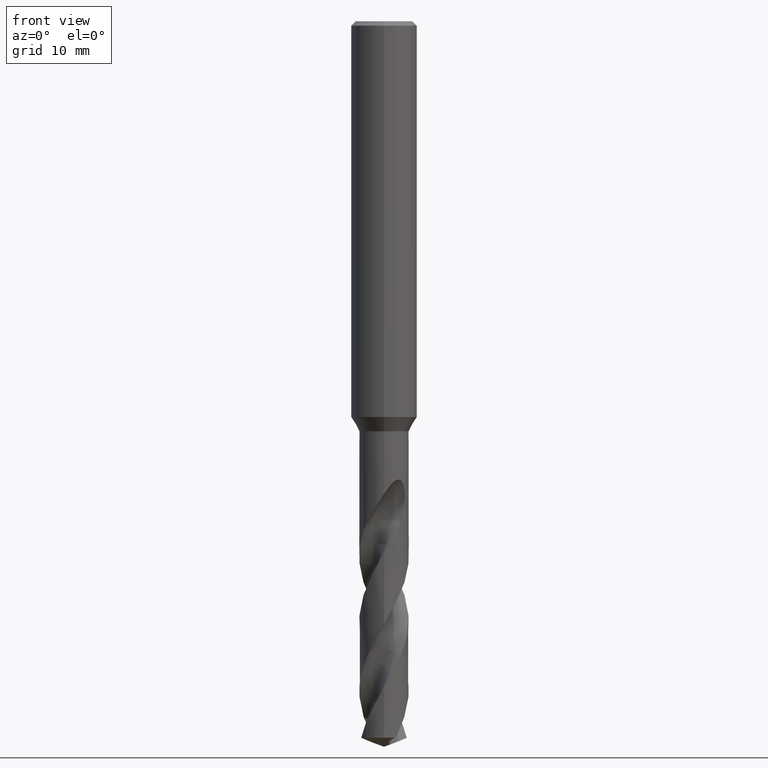
[diagram: clean part render]
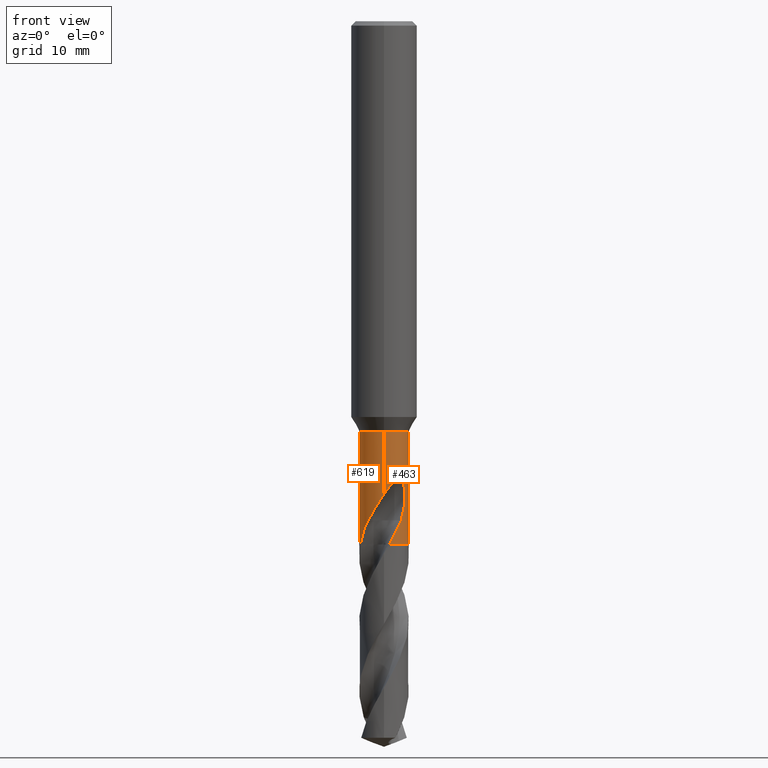
[diagram: same view with one multi-face feature highlighted, each face labeled with its STEP entity id]
A machine part, front view. The highlighted faces form ONE feature: a constant-radius fillet chain: 2 tangent blend faces with common blend radius 2.25 mm. The faces share edges in the B-rep.
Their STEP definitions:
[1] entity #463 (Cylinder):
#309=EDGE_CURVE('',#669,#689,#834,.T.);
#357=EDGE_CURVE('',#657,#689,#889,.T.);
#361=VERTEX_POINT('',#893);
#365=EDGE_CURVE('',#637,#765,#897,.T.);
#431=EDGE_CURVE('',#649,#765,#967,.T.);
#437=EDGE_CURVE('',#637,#669,#974,.T.);
#463=ADVANCED_FACE('',(#1002),#1003,.T.);
#477=EDGE_CURVE('',#505,#649,#1019,.T.);
#505=VERTEX_POINT('',#1050);
#511=EDGE_CURVE('',#361,#505,#1056,.T.);
#527=EDGE_CURVE('',#657,#715,#1073,.T.);
#637=VERTEX_POINT('',#1197);
#649=VERTEX_POINT('',#1211);
#657=VERTEX_POINT('',#1219);
#669=VERTEX_POINT('',#1232);
#689=VERTEX_POINT('',#1253);
#701=EDGE_CURVE('',#361,#715,#1266,.T.);
#715=VERTEX_POINT('',#1281);
#765=VERTEX_POINT('',#1333);
#834=B_SPLINE_CURVE_WITH_KNOTS('',3,(#1509,#1510,#1511,#1512,#1513,#1514,#1515,#1516,#1517,#1518,#1519,#1520,#1521,#1522,#1523,#1524,#1525,#1526,#1527,#1528,#1529,#1530,#1531,#1532,#1533,#1534,#1535,#1536),.UNSPECIFIED.,.F.,.F.,(4,2,2,2,2,2,2,2,2,2,2,2,2,4),(0.0,1.10237676829181,1.70429934614401,2.24948987269169,2.8828703444505,3.64370487400014,4.30313326674343,4.60196331204855,4.8203716542526,5.0270498267203,5.28923341162813,5.67281863326754,6.21813012500002,6.83823133073381),.UNSPECIFIED.);
#889=LINE('',#2030,#2031);
#893=CARTESIAN_POINT('',(6.65827493780049E-013,-2.25,-43.0152946603124));
#897=CIRCLE('',#2054,2.25);
#967=B_SPLINE_CURVE_WITH_KNOTS('',3,(#2637,#2638,#2639,#2640,#2641,#2642,#2643,#2644),.UNSPECIFIED.,.F.,.F.,(4,2,2,4),(0.0,0.55755403876802,1.06514571910261,2.29127628218224),.UNSPECIFIED.);
#974=B_SPLINE_CURVE_WITH_KNOTS('',3,(#2652,#2653,#2654,#2655,#2656,#2657,#2658,#2659),.UNSPECIFIED.,.F.,.F.,(4,2,2,4),(0.0,1.28599739553254,2.09608091802711,4.94454390842198),.UNSPECIFIED.);
#1002=FACE_OUTER_BOUND('',#2714,.T.);
#1003=CYLINDRICAL_SURFACE('',#2715,2.25);
#1019=B_SPLINE_CURVE_WITH_KNOTS('',3,(#2742,#2743,#2744,#2745),.UNSPECIFIED.,.F.,.F.,(4,4),(0.0,1.29311977624072),.UNSPECIFIED.);
#1050=CARTESIAN_POINT('',(1.8306948674076,-1.30807350804436,-44.1749444868824));
#1056=B_SPLINE_CURVE_WITH_KNOTS('',3,(#3478,#3479,#3480,#3481,#3482,#3483,#3484,#3485,#3486,#3487,#3488,#3489,#3490,#3491,#3492,#3493,#3494,#3495,#3496,#3497,#3498,#3499,#3500,#3501,#3502,#3503,#3504,#3505),.UNSPECIFIED.,.F.,.F.,(4,2,2,2,2,2,2,2,2,2,2,2,2,4),(0.0,1.10237676829181,1.70429934614394,2.2494898726916,2.8828703444505,3.64370487400023,4.30313326674349,4.60196331204858,4.8203716542527,5.02704982672052,5.28923341162848,5.67281863326762,6.2181301249992,6.83823133073143),.UNSPECIFIED.);
#1073=CIRCLE('',#3568,2.25);
#1197=CARTESIAN_POINT('',(2.15571934107587,0.644495246306297,-47.6));
#1211=CARTESIAN_POINT('',(1.56392402088537,-1.61760367732573,-45.407));
#1219=CARTESIAN_POINT('',(0.0,2.25,-37.2990381056767));
#1232=CARTESIAN_POINT('',(1.43373680585452,1.73404116777488,-45.407));
#1253=CARTESIAN_POINT('',(-6.64717270755424E-013,2.25,-43.0152946603124));
#1266=LINE('',#5847,#5848);
#1281=CARTESIAN_POINT('',(2.75536429610035E-016,-2.25,-37.2990381056767));
#1333=CARTESIAN_POINT('',(0.460660797289497,-2.20233776470382,-47.6));
#1509=CARTESIAN_POINT('',(1.43373680585452,1.73404116777488,-45.407));
#1510=CARTESIAN_POINT('',(1.28531840748315,1.85675620151544,-45.094047832029));
#1511=CARTESIAN_POINT('',(1.11467076594076,1.96584135909783,-44.8022756175691));
#1512=CARTESIAN_POINT('',(0.81711210209405,2.09954804117511,-44.3148500324075));
#1513=CARTESIAN_POINT('',(0.710036634719777,2.13801035581372,-44.1433574929602));
#1514=CARTESIAN_POINT('',(0.502752047922393,2.19549362913406,-43.8113922967703));
#1515=CARTESIAN_POINT('',(0.403468463026476,2.21580233585447,-43.65246700864));
#1516=CARTESIAN_POINT('',(0.188561307317842,2.2451128349668,-43.3099407237453));
#1517=CARTESIAN_POINT('',(0.0711426284877066,2.25199414449595,-43.1236586076092));
#1518=CARTESIAN_POINT('',(-0.189614129355091,2.24650927091748,-42.7251397399363));
#1519=CARTESIAN_POINT('',(-0.344216508040488,2.22954453559628,-42.4983781589815));
#1520=CARTESIAN_POINT('',(-0.642347221171536,2.16103276674423,-42.1244639290739));
#1521=CARTESIAN_POINT('',(-0.807291055321115,2.10883543012946,-41.9420083704354));
#1522=CARTESIAN_POINT('',(-1.05693186905048,1.98818290346383,-41.7711572005222));
#1523=CARTESIAN_POINT('',(-1.13956457960838,1.9426338280077,-41.7289330620008));
#1524=CARTESIAN_POINT('',(-1.28435609304837,1.84884715320582,-41.6964973436554));
#1525=CARTESIAN_POINT('',(-1.34374322626079,1.80613599454048,-41.6958916851621));
#1526=CARTESIAN_POINT('',(-1.45435497133747,1.71815991904833,-41.724279673852));
#1527=CARTESIAN_POINT('',(-1.50273103034455,1.67566922866192,-41.75089594029));
#1528=CARTESIAN_POINT('',(-1.60117577401835,1.58255419568909,-41.8341751821428));
#1529=CARTESIAN_POINT('',(-1.64672076822659,1.53429964522005,-41.8956619242978));
#1530=CARTESIAN_POINT('',(-1.74001164378541,1.42893229649089,-42.0640317240675));
#1531=CARTESIAN_POINT('',(-1.78460282261076,1.37155223423002,-42.1889123627397));
#1532=CARTESIAN_POINT('',(-1.86845488675278,1.25633378271581,-42.5383144933762));
#1533=CARTESIAN_POINT('',(-1.89876934940317,1.20725625416177,-42.7871540010812));
#1534=CARTESIAN_POINT('',(-1.91815217862639,1.17625283009311,-43.382082225774));
#1535=CARTESIAN_POINT('',(-1.90441817677815,1.20489514441039,-43.7556273268125));
#1536=CARTESIAN_POINT('',(-1.8306948674076,1.30807350804437,-44.1749444868824));
#2030=CARTESIAN_POINT('',(-2.75536429610035E-016,2.25,-42.4495190528383));
#2031=VECTOR('',#7011,1.0);
#2054=AXIS2_PLACEMENT_3D('',#7012,#7013,#7014);
#2637=CARTESIAN_POINT('',(1.56392402088537,-1.61760367732573,-45.407));
#2638=CARTESIAN_POINT('',(1.50039415086636,-1.67902532909319,-45.5704994165577));
#2639=CARTESIAN_POINT('',(1.43137149254343,-1.73879532790129,-45.73453330758));
#2640=CARTESIAN_POINT('',(1.28074922761378,-1.85209305228338,-46.0553195717561));
#2641=CARTESIAN_POINT('',(1.20413959618379,-1.90317989877412,-46.2090568045551));
#2642=CARTESIAN_POINT('',(0.914656382958197,-2.0692038211752,-46.7822674646906));
#2643=CARTESIAN_POINT('',(0.692365972268975,-2.15387222397126,-47.1918302557839));
#2644=CARTESIAN_POINT('',(0.460660797289477,-2.20233776470384,-47.6));
#2652=CARTESIAN_POINT('',(2.15571934107587,0.644495246306297,-47.6));
#2653=CARTESIAN_POINT('',(2.09402165108458,0.850862794207038,-47.2293786338645));
#2654=CARTESIAN_POINT('',(2.00402082069842,1.04428822684783,-46.8759147557581));
#2655=CARTESIAN_POINT('',(1.81823137601946,1.33193418632518,-46.2648250588165));
#2656=CARTESIAN_POINT('',(1.75809873406274,1.40455722380299,-46.0857670836258));
#2657=CARTESIAN_POINT('',(1.6589099690586,1.52487953277457,-45.798540947007));
#2658=CARTESIAN_POINT('',(1.56140059388479,1.62848642370345,-45.5982257988504));
#2659=CARTESIAN_POINT('',(1.43373680585452,1.73404116777488,-45.407));
#2714=EDGE_LOOP('',(#7093,#7094,#7095,#7096,#7097,#7098,#7099,#7100,#7101));
#2715=AXIS2_PLACEMENT_3D('',#7102,#7103,#7104);
#2742=CARTESIAN_POINT('',(1.83069486746022,-1.30807350797072,-44.1749444869114));
#2743=CARTESIAN_POINT('',(1.75815672198912,-1.40959319306474,-44.5875307061317));
#2744=CARTESIAN_POINT('',(1.670728868177,-1.51434311445256,-45.0025722088964));
#2745=CARTESIAN_POINT('',(1.56392402088537,-1.61760367732573,-45.407));
#3478=CARTESIAN_POINT('',(-1.43373680585452,-1.73404116777488,-45.407));
#3479=CARTESIAN_POINT('',(-1.28531840748316,-1.85675620151544,-45.094047832029));
#3480=CARTESIAN_POINT('',(-1.11467076594076,-1.96584135909783,-44.8022756175691));
#3481=CARTESIAN_POINT('',(-0.817112102094059,-2.09954804117511,-44.3148500324075));
#3482=CARTESIAN_POINT('',(-0.710036634719798,-2.13801035581372,-44.1433574929603));
#3483=CARTESIAN_POINT('',(-0.50275204792237,-2.19549362913407,-43.8113922967703));
#3484=CARTESIAN_POINT('',(-0.403468463026427,-2.21580233585448,-43.6524670086399));
#3485=CARTESIAN_POINT('',(-0.188561307317877,-2.24511283496679,-43.3099407237454));
#3486=CARTESIAN_POINT('',(-0.0711426284877195,-2.25199414449595,-43.1236586076092));
#3487=CARTESIAN_POINT('',(0.189614129355106,-2.24650927091748,-42.7251397399363));
#3488=CARTESIAN_POINT('',(0.344216508040494,-2.22954453559628,-42.4983781589815));
#3489=CARTESIAN_POINT('',(0.642347221171512,-2.16103276674424,-42.1244639290739));
#3490=CARTESIAN_POINT('',(0.807291055321111,-2.10883543012946,-41.9420083704354));
#3491=CARTESIAN_POINT('',(1.05693186905048,-1.98818290346383,-41.7711572005222));
#3492=CARTESIAN_POINT('',(1.13956457960838,-1.9426338280077,-41.7289330620008));
#3493=CARTESIAN_POINT('',(1.2843560930484,-1.8488471532058,-41.6964973436554));
#3494=CARTESIAN_POINT('',(1.34374322626081,-1.80613599454048,-41.6958916851621));
#3495=CARTESIAN_POINT('',(1.45435497133748,-1.71815991904833,-41.724279673852));
#3496=CARTESIAN_POINT('',(1.50273103034455,-1.67566922866191,-41.75089594029));
#3497=CARTESIAN_POINT('',(1.60117577401835,-1.58255419568909,-41.8341751821428));
#3498=CARTESIAN_POINT('',(1.64672076822658,-1.53429964522005,-41.8956619242978));
#3499=CARTESIAN_POINT('',(1.74001164378536,-1.42893229649095,-42.0640317240674));
#3500=CARTESIAN_POINT('',(1.78460282261072,-1.37155223423007,-42.1889123627395));
#3501=CARTESIAN_POINT('',(1.86845488675279,-1.2563337827158,-42.5383144933762));
#3502=CARTESIAN_POINT('',(1.89876934940317,-1.20725625416177,-42.7871540010812));
#3503=CARTESIAN_POINT('',(1.91815217862638,-1.17625283009312,-43.3820822257736));
#3504=CARTESIAN_POINT('',(1.90441817677821,-1.2048951444103,-43.7556273268122));
#3505=CARTESIAN_POINT('',(1.8306948674076,-1.30807350804436,-44.1749444868824));
#3568=AXIS2_PLACEMENT_3D('',#7178,#7179,#7180);
#5847=CARTESIAN_POINT('',(2.75536429610035E-016,-2.25,-42.4495190528383));
#5848=VECTOR('',#7389,1.0);
#7011=DIRECTION('',(0.0,0.0,-1.0));
#7012=CARTESIAN_POINT('',(0.0,0.0,-47.6));
#7013=DIRECTION('',(0.0,0.0,-1.0));
#7014=DIRECTION('',(0.0,1.0,0.0));
#7093=ORIENTED_EDGE('',*,*,#357,.F.);
#7094=ORIENTED_EDGE('',*,*,#527,.T.);
#7095=ORIENTED_EDGE('',*,*,#701,.F.);
#7096=ORIENTED_EDGE('',*,*,#511,.T.);
#7097=ORIENTED_EDGE('',*,*,#477,.T.);
#7098=ORIENTED_EDGE('',*,*,#431,.T.);
#7099=ORIENTED_EDGE('',*,*,#365,.F.);
#7100=ORIENTED_EDGE('',*,*,#437,.T.);
#7101=ORIENTED_EDGE('',*,*,#309,.T.);
#7102=CARTESIAN_POINT('',(0.0,0.0,-42.4495190528383));
#7103=DIRECTION('',(-0.0,-0.0,1.0));
#7104=DIRECTION('',(0.0,1.0,0.0));
#7178=CARTESIAN_POINT('',(0.0,0.0,-37.2990381056767));
#7179=DIRECTION('',(0.0,0.0,-1.0));
#7180=DIRECTION('',(0.0,1.0,0.0));
#7389=DIRECTION('',(-0.0,-0.0,1.0));
[2] entity #619 (Cylinder):
#357=EDGE_CURVE('',#657,#689,#889,.T.);
#361=VERTEX_POINT('',#893);
#379=EDGE_CURVE('',#635,#717,#911,.T.);
#407=EDGE_CURVE('',#689,#495,#940,.T.);
#441=EDGE_CURVE('',#495,#613,#978,.T.);
#467=EDGE_CURVE('',#635,#569,#1007,.T.);
#489=EDGE_CURVE('',#613,#569,#1033,.T.);
#495=VERTEX_POINT('',#1039);
#569=VERTEX_POINT('',#1119);
#585=EDGE_CURVE('',#715,#657,#1138,.T.);
#613=VERTEX_POINT('',#1169);
#619=ADVANCED_FACE('',(#1175),#1176,.T.);
#635=VERTEX_POINT('',#1195);
#657=VERTEX_POINT('',#1219);
#665=EDGE_CURVE('',#717,#361,#1228,.T.);
#689=VERTEX_POINT('',#1253);
#701=EDGE_CURVE('',#361,#715,#1266,.T.);
#715=VERTEX_POINT('',#1281);
#717=VERTEX_POINT('',#1283);
#889=LINE('',#2030,#2031);
#893=CARTESIAN_POINT('',(6.65827493780049E-013,-2.25,-43.0152946603124));
#911=B_SPLINE_CURVE_WITH_KNOTS('',3,(#2086,#2087,#2088,#2089,#2090,#2091,#2092,#2093),.UNSPECIFIED.,.F.,.F.,(4,2,2,4),(0.0,1.28599739653616,2.09608092041925,4.94454398733748),.UNSPECIFIED.);
#940=B_SPLINE_CURVE_WITH_KNOTS('',3,(#2135,#2136,#2137,#2138,#2139,#2140,#2141,#2142,#2143,#2144,#2145,#2146,#2147,#2148,#2149,#2150,#2151,#2152,#2153,#2154,#2155,#2156,#2157,#2158,#2159,#2160,#2161,#2162),.UNSPECIFIED.,.F.,.F.,(4,2,2,2,2,2,2,2,2,2,2,2,2,4),(0.0,1.10237676829181,1.70429934614401,2.24948987269169,2.8828703444505,3.64370487400014,4.30313326674343,4.60196331204855,4.8203716542526,5.0270498267203,5.28923341162813,5.67281863326754,6.21813012500002,6.83823133073381),.UNSPECIFIED.);
#978=B_SPLINE_CURVE_WITH_KNOTS('',3,(#2664,#2665,#2666,#2667),.UNSPECIFIED.,.F.,.F.,(4,4),(0.0,1.29311977624086),.UNSPECIFIED.);
#1007=CIRCLE('',#2720,2.25);
#1033=B_SPLINE_CURVE_WITH_KNOTS('',3,(#3344,#3345,#3346,#3347,#3348,#3349,#3350,#3351),.UNSPECIFIED.,.F.,.F.,(4,2,2,4),(0.0,0.557554038716926,1.06514571864225,2.29127628219695),.UNSPECIFIED.);
#1039=CARTESIAN_POINT('',(-1.8306948674076,1.30807350804436,-44.1749444868824));
#1119=CARTESIAN_POINT('',(-0.46066079728949,2.20233776470382,-47.6));
#1138=CIRCLE('',#4773,2.25);
#1169=CARTESIAN_POINT('',(-1.56392402088537,1.61760367732573,-45.407));
#1175=FACE_OUTER_BOUND('',#5052,.T.);
#1176=CYLINDRICAL_SURFACE('',#5053,2.25);
#1195=CARTESIAN_POINT('',(-2.15571934107587,-0.644495246306293,-47.6));
#1219=CARTESIAN_POINT('',(0.0,2.25,-37.2990381056767));
#1228=B_SPLINE_CURVE_WITH_KNOTS('',3,(#5678,#5679,#5680,#5681,#5682,#5683,#5684,#5685,#5686,#5687,#5688,#5689,#5690,#5691,#5692,#5693,#5694,#5695,#5696,#5697,#5698,#5699,#5700,#5701,#5702,#5703,#5704,#5705),.UNSPECIFIED.,.F.,.F.,(4,2,2,2,2,2,2,2,2,2,2,2,2,4),(0.0,1.10237676829181,1.70429934614394,2.2494898726916,2.8828703444505,3.64370487400023,4.30313326674349,4.60196331204858,4.8203716542527,5.02704982672052,5.28923341162848,5.67281863326762,6.2181301249992,6.83823133073143),.UNSPECIFIED.);
#1253=CARTESIAN_POINT('',(-6.64717270755424E-013,2.25,-43.0152946603124));
#1266=LINE('',#5847,#5848);
#1281=CARTESIAN_POINT('',(2.75536429610035E-016,-2.25,-37.2990381056767));
#1283=CARTESIAN_POINT('',(-1.43373680585452,-1.73404116777488,-45.407));
#2030=CARTESIAN_POINT('',(-2.75536429610035E-016,2.25,-42.4495190528383));
#2031=VECTOR('',#7011,1.0);
#2086=CARTESIAN_POINT('',(-2.15571934107587,-0.644495246306279,-47.6));
#2087=CARTESIAN_POINT('',(-2.09402165103644,-0.850862794368064,-47.2293786335753));
#2088=CARTESIAN_POINT('',(-2.00402082066697,-1.04428822689931,-46.8759147556516));
#2089=CARTESIAN_POINT('',(-1.81823137595767,-1.33193418641903,-46.2648250586152));
#2090=CARTESIAN_POINT('',(-1.75809873392896,-1.40455722395062,-46.0857670833168));
#2091=CARTESIAN_POINT('',(-1.65890996933118,-1.52487953249544,-45.7985409475202));
#2092=CARTESIAN_POINT('',(-1.56140059408622,-1.62848642353691,-45.5982257991521));
#2093=CARTESIAN_POINT('',(-1.43373680585452,-1.73404116777488,-45.407));
#2135=CARTESIAN_POINT('',(1.43373680585452,1.73404116777488,-45.407));
#2136=CARTESIAN_POINT('',(1.28531840748315,1.85675620151544,-45.094047832029));
#2137=CARTESIAN_POINT('',(1.11467076594076,1.96584135909783,-44.8022756175691));
#2138=CARTESIAN_POINT('',(0.81711210209405,2.09954804117511,-44.3148500324075));
#2139=CARTESIAN_POINT('',(0.710036634719777,2.13801035581372,-44.1433574929602));
#2140=CARTESIAN_POINT('',(0.502752047922393,2.19549362913406,-43.8113922967703));
#2141=CARTESIAN_POINT('',(0.403468463026476,2.21580233585447,-43.65246700864));
#2142=CARTESIAN_POINT('',(0.188561307317842,2.2451128349668,-43.3099407237453));
#2143=CARTESIAN_POINT('',(0.0711426284877066,2.25199414449595,-43.1236586076092));
#2144=CARTESIAN_POINT('',(-0.189614129355091,2.24650927091748,-42.7251397399363));
#2145=CARTESIAN_POINT('',(-0.344216508040488,2.22954453559628,-42.4983781589815));
#2146=CARTESIAN_POINT('',(-0.642347221171536,2.16103276674423,-42.1244639290739));
#2147=CARTESIAN_POINT('',(-0.807291055321115,2.10883543012946,-41.9420083704354));
#2148=CARTESIAN_POINT('',(-1.05693186905048,1.98818290346383,-41.7711572005222));
#2149=CARTESIAN_POINT('',(-1.13956457960838,1.9426338280077,-41.7289330620008));
#2150=CARTESIAN_POINT('',(-1.28435609304837,1.84884715320582,-41.6964973436554));
#2151=CARTESIAN_POINT('',(-1.34374322626079,1.80613599454048,-41.6958916851621));
#2152=CARTESIAN_POINT('',(-1.45435497133747,1.71815991904833,-41.724279673852));
#2153=CARTESIAN_POINT('',(-1.50273103034455,1.67566922866192,-41.75089594029));
#2154=CARTESIAN_POINT('',(-1.60117577401835,1.58255419568909,-41.8341751821428));
#2155=CARTESIAN_POINT('',(-1.64672076822659,1.53429964522005,-41.8956619242978));
#2156=CARTESIAN_POINT('',(-1.74001164378541,1.42893229649089,-42.0640317240675));
#2157=CARTESIAN_POINT('',(-1.78460282261076,1.37155223423002,-42.1889123627397));
#2158=CARTESIAN_POINT('',(-1.86845488675278,1.25633378271581,-42.5383144933762));
#2159=CARTESIAN_POINT('',(-1.89876934940317,1.20725625416177,-42.7871540010812));
#2160=CARTESIAN_POINT('',(-1.91815217862639,1.17625283009311,-43.382082225774));
#2161=CARTESIAN_POINT('',(-1.90441817677815,1.20489514441039,-43.7556273268125));
#2162=CARTESIAN_POINT('',(-1.8306948674076,1.30807350804437,-44.1749444868824));
#2664=CARTESIAN_POINT('',(-1.83069486746022,1.30807350797072,-44.1749444869114));
#2665=CARTESIAN_POINT('',(-1.75815672198911,1.40959319306475,-44.5875307061318));
#2666=CARTESIAN_POINT('',(-1.67072886817699,1.51434311445257,-45.0025722088964));
#2667=CARTESIAN_POINT('',(-1.56392402088537,1.61760367732573,-45.407));
#2720=AXIS2_PLACEMENT_3D('',#7105,#7106,#7107);
#3344=CARTESIAN_POINT('',(-1.56392402088537,1.61760367732573,-45.407));
#3345=CARTESIAN_POINT('',(-1.50039415087218,1.67902532908756,-45.5704994165427));
#3346=CARTESIAN_POINT('',(-1.43137149254936,1.73879532789682,-45.7345333075674));
#3347=CARTESIAN_POINT('',(-1.28074922765974,1.8520930522488,-46.0553195716582));
#3348=CARTESIAN_POINT('',(-1.20413959630382,1.90317989869306,-46.2090568043099));
#3349=CARTESIAN_POINT('',(-0.91465638314627,2.06920382109681,-46.7822674643362));
#3350=CARTESIAN_POINT('',(-0.692365972425382,2.15387222393853,-47.1918302555084));
#3351=CARTESIAN_POINT('',(-0.460660797289463,2.20233776470383,-47.6));
#4773=AXIS2_PLACEMENT_3D('',#7260,#7261,#7262);
#5052=EDGE_LOOP('',(#7294,#7295,#7296,#7297,#7298,#7299,#7300,#7301,#7302));
#5053=AXIS2_PLACEMENT_3D('',#7303,#7304,#7305);
#5678=CARTESIAN_POINT('',(-1.43373680585452,-1.73404116777488,-45.407));
#5679=CARTESIAN_POINT('',(-1.28531840748316,-1.85675620151544,-45.094047832029));
#5680=CARTESIAN_POINT('',(-1.11467076594076,-1.96584135909783,-44.8022756175691));
#5681=CARTESIAN_POINT('',(-0.817112102094059,-2.09954804117511,-44.3148500324075));
#5682=CARTESIAN_POINT('',(-0.710036634719798,-2.13801035581372,-44.1433574929603));
#5683=CARTESIAN_POINT('',(-0.50275204792237,-2.19549362913407,-43.8113922967703));
#5684=CARTESIAN_POINT('',(-0.403468463026427,-2.21580233585448,-43.6524670086399));
#5685=CARTESIAN_POINT('',(-0.188561307317877,-2.24511283496679,-43.3099407237454));
#5686=CARTESIAN_POINT('',(-0.0711426284877195,-2.25199414449595,-43.1236586076092));
#5687=CARTESIAN_POINT('',(0.189614129355106,-2.24650927091748,-42.7251397399363));
#5688=CARTESIAN_POINT('',(0.344216508040494,-2.22954453559628,-42.4983781589815));
#5689=CARTESIAN_POINT('',(0.642347221171512,-2.16103276674424,-42.1244639290739));
#5690=CARTESIAN_POINT('',(0.807291055321111,-2.10883543012946,-41.9420083704354));
#5691=CARTESIAN_POINT('',(1.05693186905048,-1.98818290346383,-41.7711572005222));
#5692=CARTESIAN_POINT('',(1.13956457960838,-1.9426338280077,-41.7289330620008));
#5693=CARTESIAN_POINT('',(1.2843560930484,-1.8488471532058,-41.6964973436554));
#5694=CARTESIAN_POINT('',(1.34374322626081,-1.80613599454048,-41.6958916851621));
#5695=CARTESIAN_POINT('',(1.45435497133748,-1.71815991904833,-41.724279673852));
#5696=CARTESIAN_POINT('',(1.50273103034455,-1.67566922866191,-41.75089594029));
#5697=CARTESIAN_POINT('',(1.60117577401835,-1.58255419568909,-41.8341751821428));
#5698=CARTESIAN_POINT('',(1.64672076822658,-1.53429964522005,-41.8956619242978));
#5699=CARTESIAN_POINT('',(1.74001164378536,-1.42893229649095,-42.0640317240674));
#5700=CARTESIAN_POINT('',(1.78460282261072,-1.37155223423007,-42.1889123627395));
#5701=CARTESIAN_POINT('',(1.86845488675279,-1.2563337827158,-42.5383144933762));
#5702=CARTESIAN_POINT('',(1.89876934940317,-1.20725625416177,-42.7871540010812));
#5703=CARTESIAN_POINT('',(1.91815217862638,-1.17625283009312,-43.3820822257736));
#5704=CARTESIAN_POINT('',(1.90441817677821,-1.2048951444103,-43.7556273268122));
#5705=CARTESIAN_POINT('',(1.8306948674076,-1.30807350804436,-44.1749444868824));
#5847=CARTESIAN_POINT('',(2.75536429610035E-016,-2.25,-42.4495190528383));
#5848=VECTOR('',#7389,1.0);
#7011=DIRECTION('',(0.0,0.0,-1.0));
#7105=CARTESIAN_POINT('',(0.0,0.0,-47.6));
#7106=DIRECTION('',(0.0,0.0,-1.0));
#7107=DIRECTION('',(0.0,1.0,0.0));
#7260=CARTESIAN_POINT('',(0.0,0.0,-37.2990381056767));
#7261=DIRECTION('',(0.0,0.0,-1.0));
#7262=DIRECTION('',(0.0,1.0,0.0));
#7294=ORIENTED_EDGE('',*,*,#357,.T.);
#7295=ORIENTED_EDGE('',*,*,#407,.T.);
#7296=ORIENTED_EDGE('',*,*,#441,.T.);
#7297=ORIENTED_EDGE('',*,*,#489,.T.);
#7298=ORIENTED_EDGE('',*,*,#467,.F.);
#7299=ORIENTED_EDGE('',*,*,#379,.T.);
#7300=ORIENTED_EDGE('',*,*,#665,.T.);
#7301=ORIENTED_EDGE('',*,*,#701,.T.);
#7302=ORIENTED_EDGE('',*,*,#585,.T.);
#7303=CARTESIAN_POINT('',(0.0,0.0,-42.4495190528383));
#7304=DIRECTION('',(-0.0,-0.0,1.0));
#7305=DIRECTION('',(0.0,1.0,0.0));
#7389=DIRECTION('',(-0.0,-0.0,1.0));